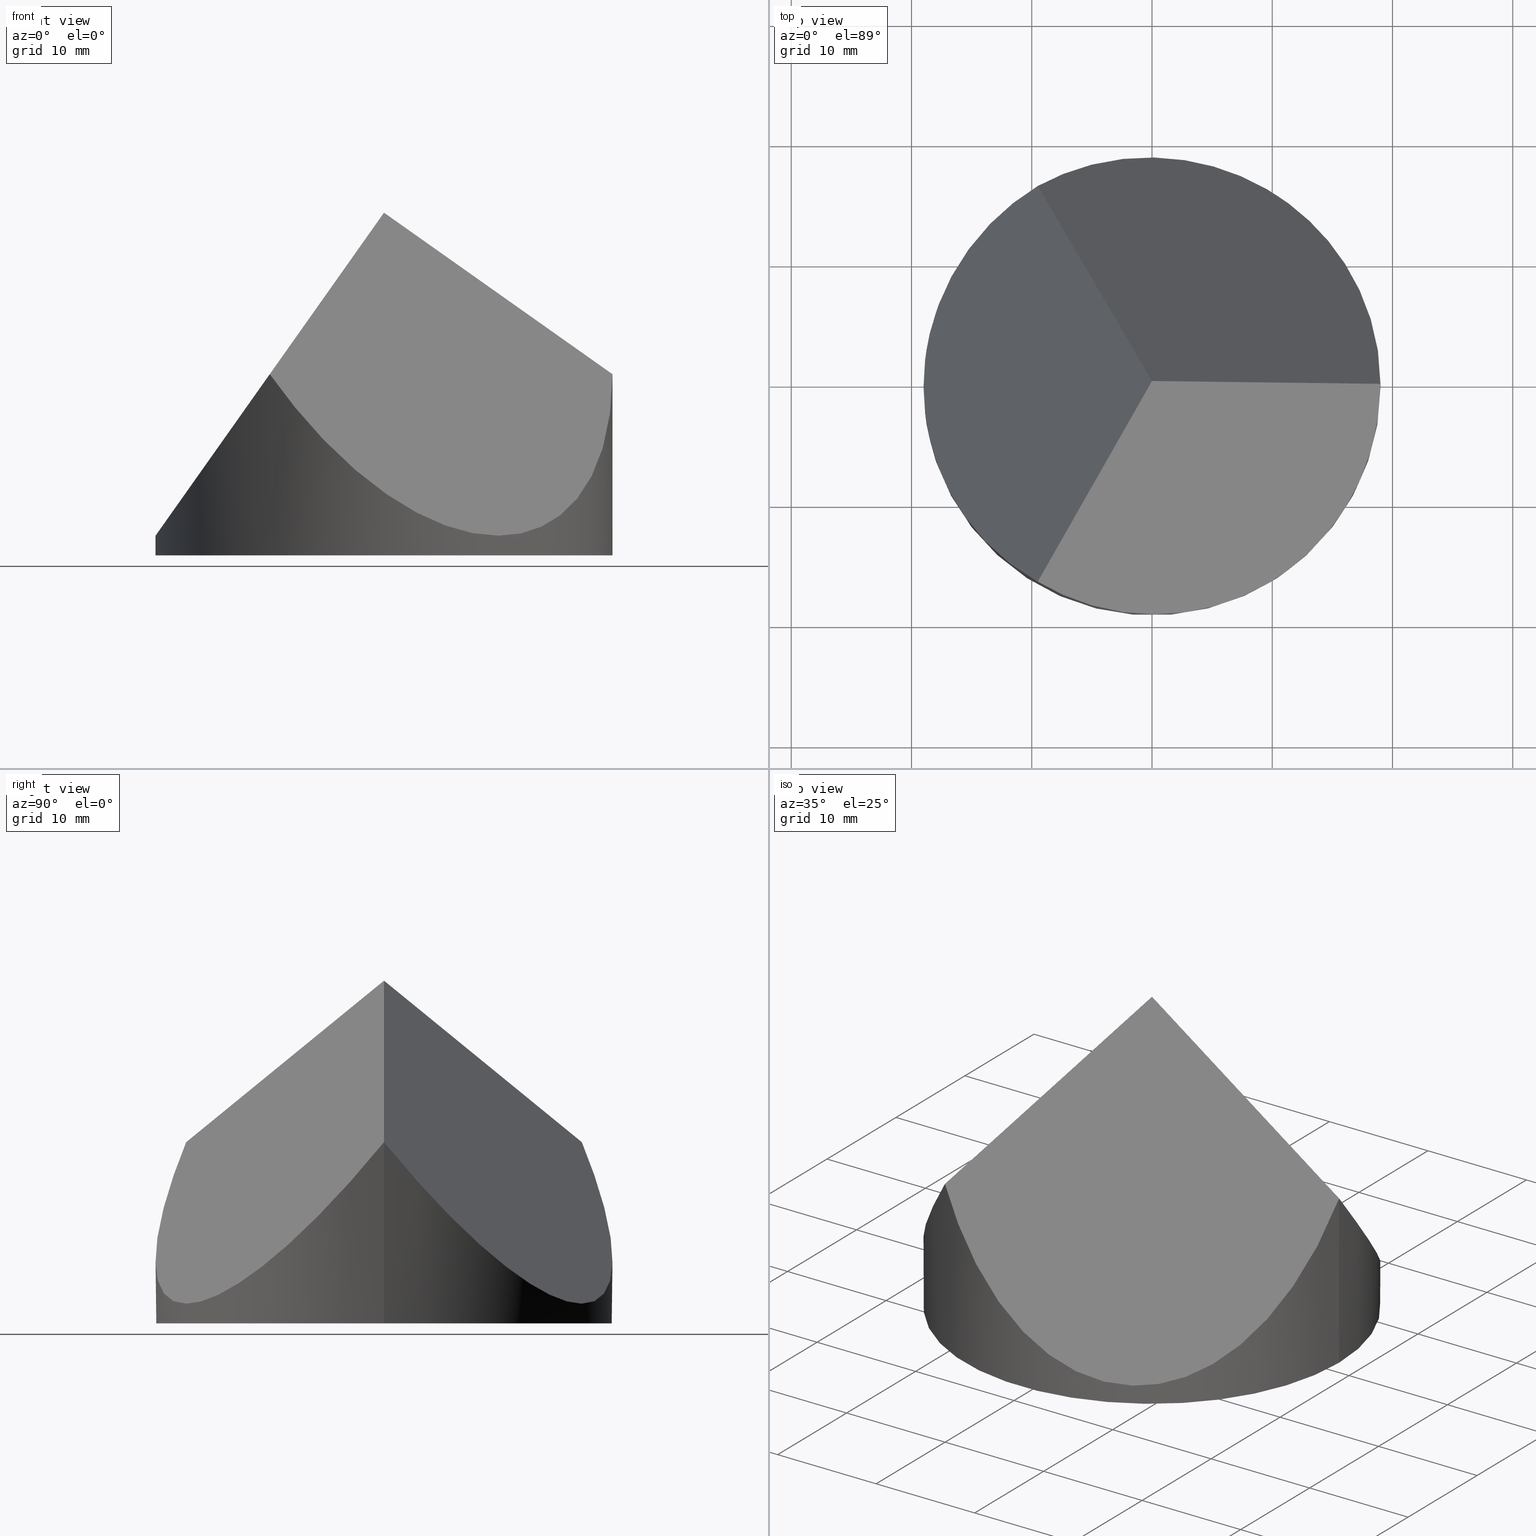
[diagram: canonical four-view strip — front | top / right | iso, engineering-drawing reading convention]
A machine part, canonical four-view strip (front | top / right | iso — engineering-drawing reading convention). The complete STEP part file that produces these views, byte-faithful:
ISO-10303-21;
HEADER;
FILE_DESCRIPTION (( 'STEP AP203' ),
    '1' );
FILE_NAME ('371505.STEP',
    '2019-07-25T01:35:21',
    ( '' ),
    ( '' ),
    'SwSTEP 2.0',
    'SolidWorks 2016',
    '' );
FILE_SCHEMA (( 'CONFIG_CONTROL_DESIGN' ));
ENDSEC;

DATA;
#1 = DIRECTION ( 'NONE',  ( 0.0000000000000000000, 0.6325343505460016000, 0.7745323075116672400 ) ) ;
#2 = DIRECTION ( 'NONE',  ( 0.0000000000000000000, 0.0000000000000000000, 1.000000000000000000 ) ) ;
#3 = CALENDAR_DATE ( 2019, 25, 7 ) ;
#4 = SECURITY_CLASSIFICATION_LEVEL ( 'unclassified' ) ;
#5 = ORIENTED_EDGE ( 'NONE', *, *, #251, .T. ) ;
#6 = APPROVAL_PERSON_ORGANIZATION ( #37, #94, #277 ) ;
#7 = CC_DESIGN_DATE_AND_TIME_ASSIGNMENT ( #107, #239, ( #309 ) ) ;
#8 = PERSON ( 'δָ��', 'δָ��', 'δָ��', ('δָ��'), ('δָ��'), ('δָ��') ) ;
#9 = DIRECTION ( 'NONE',  ( -1.000000000000000000, 0.0000000000000000000, 0.0000000000000000000 ) ) ;
#10 = EDGE_LOOP ( 'NONE', ( #231, #297 ) ) ;
#11 = EDGE_CURVE ( 'NONE', #134, #50, #34, .T. ) ;
#12 = CARTESIAN_POINT ( 'NONE',  ( 21.36491780749591400, 0.0000000000000000000, 13.39585933566258700 ) ) ;
#13 = PRODUCT_DEFINITION_SHAPE ( 'NONE', 'NONE',  #309 ) ;
#14 = CC_DESIGN_APPROVAL ( #30, ( #158 ) ) ;
#15 = CARTESIAN_POINT ( 'NONE',  ( 19.00000000000001400, 5.354801039138735000E-032, 15.06776144854982000 ) ) ;
#16 = APPROVAL_PERSON_ORGANIZATION ( #160, #30, #260 ) ;
#17 = APPROVAL_PERSON_ORGANIZATION ( #149, #206, #128 ) ;
#18 = LOCAL_TIME ( 9, 35, 21.00000000000000000, #165 ) ;
#19 = AXIS2_PLACEMENT_3D ( 'NONE', #147, #170, #1 ) ;
#20 = LOCAL_TIME ( 9, 35, 21.00000000000000000, #98 ) ;
#21 = ORIENTED_EDGE ( 'NONE', *, *, #256, .T. ) ;
#22 = DIRECTION ( 'NONE',  ( 0.0000000000000000000, 0.0000000000000000000, 1.000000000000000000 ) ) ;
#23 = DESIGN_CONTEXT ( 'detailed design', #52, 'design' ) ;
#24 = CARTESIAN_POINT ( 'NONE',  ( -19.00000000000000400, -6.954482671904324700, 1.635522897099544300 ) ) ;
#25 = APPROVAL ( #151, 'δָ��' ) ;
#26 = APPLICATION_CONTEXT ( 'configuration controlled 3d designs of mechanical parts and assemblies' ) ;
#27 = VECTOR ( 'NONE', #130, 1000.000000000000000 ) ;
#28 = PERSON_AND_ORGANIZATION ( #8, #115 ) ;
#29 = PRODUCT_DEFINITION_SHAPE ( 'NONE', 'NONE',  #295 ) ;
#30 = APPROVAL ( #303, 'δָ��' ) ;
#31 = CALENDAR_DATE ( 2019, 25, 7 ) ;
#32 = PERSON_AND_ORGANIZATION_ROLE ( 'creator' ) ;
#33 = APPROVAL_STATUS ( 'not_yet_approved' ) ;
#34 = LINE ( 'NONE', #189, #110 ) ;
#35 = CARTESIAN_POINT ( 'NONE',  ( -19.00000000000000000, 0.0000000000000000000, 0.0000000000000000000 ) ) ;
#36 = LOCAL_TIME ( 9, 35, 21.00000000000000000, #99 ) ;
#37 = PERSON_AND_ORGANIZATION ( #8, #115 ) ;
#38 = DIRECTION ( 'NONE',  ( 1.000000000000000000, 0.0000000000000000000, -0.0000000000000000000 ) ) ;
#39 = CC_DESIGN_PERSON_AND_ORGANIZATION_ASSIGNMENT ( #144, #279, ( #226 ) ) ;
#40 = ORIENTED_EDGE ( 'NONE', *, *, #202, .T. ) ;
#41 = COORDINATED_UNIVERSAL_TIME_OFFSET ( 8, 0, .AHEAD. ) ;
#42 =( NAMED_UNIT ( * ) PLANE_ANGLE_UNIT ( ) SI_UNIT ( $, .RADIAN. ) );
#43 = AXIS2_PLACEMENT_3D ( 'NONE', #250, #2, #272 ) ;
#44 = DIRECTION ( 'NONE',  ( 0.4082200218682777700, 0.7070578185427395200, 0.5774302165486711000 ) ) ;
#45 = LINE ( 'NONE', #161, #157 ) ;
#46 = CARTESIAN_POINT ( 'NONE',  ( -9.500000000000016000, -16.45448267190433000, 15.06776144854975300 ) ) ;
#47 = APPLICATION_CONTEXT ( 'configuration controlled 3d designs of mechanical parts and assemblies' ) ;
#48 = PERSON_AND_ORGANIZATION_ROLE ( 'creator' ) ;
#49 = AXIS2_PLACEMENT_3D ( 'NONE', #227, #22, #252 ) ;
#50 = VERTEX_POINT ( 'NONE', #219 ) ;
#51 = APPROVAL_PERSON_ORGANIZATION ( #265, #25, #299 ) ;
#52 = APPLICATION_CONTEXT ( 'configuration controlled 3d designs of mechanical parts and assemblies' ) ;
#53 =( BOUNDED_CURVE ( )  B_SPLINE_CURVE ( 3, ( #56, #213, #285, #62 ),
 .UNSPECIFIED., .F., .F. ) 
 B_SPLINE_CURVE_WITH_KNOTS ( ( 4, 4 ),
 ( 5.235987755982986200, 7.330382858376182800 ),
 .UNSPECIFIED. ) 
 CURVE ( )  GEOMETRIC_REPRESENTATION_ITEM ( )  RATIONAL_B_SPLINE_CURVE ( ( 1.000000000000000000, 0.6666666666666663000, 0.6666666666666663000, 1.000000000000000000 ) ) 
 REPRESENTATION_ITEM ( '' )  );
#54 = APPROVAL_ROLE ( '' ) ;
#55 = PRODUCT ( '371505', '371505', '', ( #300 ) ) ;
#56 = CARTESIAN_POINT ( 'NONE',  ( 19.00000000000001400, 5.354801039138735000E-032, 15.06776144854982000 ) ) ;
#57 = FACE_OUTER_BOUND ( 'NONE', #287, .T. ) ;
#58 = ORIENTED_EDGE ( 'NONE', *, *, #113, .T. ) ;
#59 = APPROVAL_DATE_TIME ( #138, #246 ) ;
#60 = DIRECTION ( 'NONE',  ( -0.0000000000000000000, -0.0000000000000000000, -1.000000000000000000 ) ) ;
#61 = CC_DESIGN_PERSON_AND_ORGANIZATION_ASSIGNMENT ( #90, #154, ( #158 ) ) ;
#62 = CARTESIAN_POINT ( 'NONE',  ( -9.500000000000021300, 16.45448267190432300, 15.06776144854974600 ) ) ;
#63 = CARTESIAN_POINT ( 'NONE',  ( -9.500000000000021300, 16.45448267190432300, 15.06776144854974600 ) ) ;
#64 = FACE_OUTER_BOUND ( 'NONE', #247, .T. ) ;
#65 = FACE_OUTER_BOUND ( 'NONE', #216, .T. ) ;
#66 = CIRCLE ( 'NONE', #267, 19.00000000000000000 ) ;
#67 = PERSON_AND_ORGANIZATION ( #8, #115 ) ;
#68 = SECURITY_CLASSIFICATION ( '', '', #283 ) ;
#69 = DIRECTION ( 'NONE',  ( 0.8164400437365592100, 0.0000000000000000000, -0.5774302165486712200 ) ) ;
#70 = DATE_AND_TIME ( #228, #136 ) ;
#71 = LOCAL_TIME ( 9, 35, 21.00000000000000000, #41 ) ;
#72 = CARTESIAN_POINT ( 'NONE',  ( -7.073520084914154200, -12.25169617543021200, 18.49860956010091000 ) ) ;
#73 = AXIS2_PLACEMENT_3D ( 'NONE', #74, #69, #146 ) ;
#74 = CARTESIAN_POINT ( 'NONE',  ( 0.0000000000000000000, -24.50000000000000000, 28.49999999999999600 ) ) ;
#75 = CARTESIAN_POINT ( 'NONE',  ( -9.500000000000021300, 16.45448267190432300, 15.06776144854974600 ) ) ;
#76 = CARTESIAN_POINT ( 'NONE',  ( -15.52275866404783900, -12.97724133595215600, 6.552063436623012800 ) ) ;
#77 = DATE_TIME_ROLE ( 'creation_date' ) ;
#78 = DATE_TIME_ROLE ( 'classification_date' ) ;
#79 =( BOUNDED_CURVE ( )  B_SPLINE_CURVE ( 3, ( #199, #294, #100, #169 ),
 .UNSPECIFIED., .F., .F. ) 
 B_SPLINE_CURVE_WITH_KNOTS ( ( 4, 4 ),
 ( 5.235987755982986200, 7.330382858376182800 ),
 .UNSPECIFIED. ) 
 CURVE ( )  GEOMETRIC_REPRESENTATION_ITEM ( )  RATIONAL_B_SPLINE_CURVE ( ( 1.000000000000000000, 0.6666666666666663000, 0.6666666666666663000, 1.000000000000000000 ) ) 
 REPRESENTATION_ITEM ( '' )  );
#80 = CC_DESIGN_PERSON_AND_ORGANIZATION_ASSIGNMENT ( #148, #105, ( #135 ) ) ;
#81 = COORDINATED_UNIVERSAL_TIME_OFFSET ( 8, 0, .AHEAD. ) ;
#82 = CALENDAR_DATE ( 2019, 25, 7 ) ;
#83 = APPLICATION_PROTOCOL_DEFINITION ( 'international standard', 'config_control_design', 1994, #47 ) ;
#84 = ORIENTED_EDGE ( 'NONE', *, *, #282, .T. ) ;
#85 = ORIENTED_EDGE ( 'NONE', *, *, #109, .T. ) ;
#86 = COORDINATED_UNIVERSAL_TIME_OFFSET ( 8, 0, .AHEAD. ) ;
#87 = DIRECTION ( 'NONE',  ( 0.0000000000000000000, 0.0000000000000000000, 1.000000000000000000 ) ) ;
#88 = EDGE_CURVE ( 'NONE', #198, #191, #45, .T. ) ;
#89 = CARTESIAN_POINT ( 'NONE',  ( -19.00000000000000000, 0.0000000000000000000, 1.635522897099547900 ) ) ;
#90 = PERSON_AND_ORGANIZATION ( #8, #115 ) ;
#91 = ORIENTED_EDGE ( 'NONE', *, *, #251, .F. ) ;
#92 = CARTESIAN_POINT ( 'NONE',  ( 0.0000000000000000000, 0.0000000000000000000, 28.50000000000000000 ) ) ;
#93 = LOCAL_TIME ( 9, 35, 21.00000000000000000, #234 ) ;
#94 = APPROVAL ( #255, 'δָ��' ) ;
#95 = VERTEX_POINT ( 'NONE', #89 ) ;
#96 = LOCAL_TIME ( 9, 35, 21.00000000000000000, #86 ) ;
#97 = EDGE_CURVE ( 'NONE', #95, #123, #269, .T. ) ;
#98 = COORDINATED_UNIVERSAL_TIME_OFFSET ( 8, 0, .AHEAD. ) ;
#99 = COORDINATED_UNIVERSAL_TIME_OFFSET ( 8, 0, .AHEAD. ) ;
#100 = CARTESIAN_POINT ( 'NONE',  ( 4.749999999999993800, -24.68172400785652300, -5.080596378625580600 ) ) ;
#101 = CC_DESIGN_PERSON_AND_ORGANIZATION_ASSIGNMENT ( #280, #108, ( #158 ) ) ;
#102 = ORIENTED_EDGE ( 'NONE', *, *, #256, .F. ) ;
#103 = ORIENTED_EDGE ( 'NONE', *, *, #97, .T. ) ;
#104 = SHAPE_DEFINITION_REPRESENTATION ( #13, #159 ) ;
#105 = PERSON_AND_ORGANIZATION_ROLE ( 'design_owner' ) ;
#106 = AXIS2_PLACEMENT_3D ( 'NONE', #196, #172, #200 ) ;
#107 = DATE_AND_TIME ( #229, #96 ) ;
#108 = PERSON_AND_ORGANIZATION_ROLE ( 'design_supplier' ) ;
#109 = EDGE_CURVE ( 'NONE', #50, #123, #66, .T. ) ;
#110 = VECTOR ( 'NONE', #60, 1000.000000000000000 ) ;
#111 = CLOSED_SHELL ( 'NONE', ( #177, #205, #301, #181, #278, #238 ) ) ;
#112 = DIRECTION ( 'NONE',  ( 1.000000000000000000, 0.0000000000000000000, 0.0000000000000000000 ) ) ;
#113 = EDGE_CURVE ( 'NONE', #134, #191, #253, .T. ) ;
#114 = AXIS2_PLACEMENT_3D ( 'NONE', #92, #156, #9 ) ;
#115 = ORGANIZATION ( 'δָ��', 'δָ��', '' ) ;
#116 = CARTESIAN_POINT ( 'NONE',  ( -19.00000000000000000, 0.0000000000000000000, 1.635522897099547900 ) ) ;
#117 = PLANE ( 'NONE',  #73 ) ;
#118 = LINE ( 'NONE', #72, #175 ) ;
#119 = CC_DESIGN_APPROVAL ( #206, ( #309 ) ) ;
#120 =( LENGTH_UNIT ( ) NAMED_UNIT ( * ) SI_UNIT ( .MILLI., .METRE. ) );
#121 = PERSON_AND_ORGANIZATION_ROLE ( 'design_supplier' ) ;
#122 = FACE_OUTER_BOUND ( 'NONE', #10, .T. ) ;
#123 = VERTEX_POINT ( 'NONE', #35 ) ;
#124 = APPLICATION_PROTOCOL_DEFINITION ( 'international standard', 'config_control_design', 1994, #26 ) ;
#125 = PERSON_AND_ORGANIZATION_ROLE ( 'classification_officer' ) ;
#126 = CC_DESIGN_PERSON_AND_ORGANIZATION_ASSIGNMENT ( #225, #183, ( #55 ) ) ;
#127 = CIRCLE ( 'NONE', #106, 19.00000000000000000 ) ;
#128 = APPROVAL_ROLE ( '' ) ;
#129 = ORIENTED_EDGE ( 'NONE', *, *, #11, .T. ) ;
#130 = DIRECTION ( 'NONE',  ( -0.0000000000000000000, -0.0000000000000000000, -1.000000000000000000 ) ) ;
#131 = UNCERTAINTY_MEASURE_WITH_UNIT (LENGTH_MEASURE( 1.000000000000000100E-005 ), #120, 'distance_accuracy_value', 'NONE');
#132 = EDGE_CURVE ( 'NONE', #134, #198, #53, .T. ) ;
#133 = PLANE ( 'NONE',  #312 ) ;
#134 = VERTEX_POINT ( 'NONE', #15 ) ;
#135 = PRODUCT ( '371505', '371505', '', ( #176 ) ) ;
#136 = LOCAL_TIME ( 9, 35, 21.00000000000000000, #81 ) ;
#137 = CYLINDRICAL_SURFACE ( 'NONE', #114, 19.00000000000000000 ) ;
#138 = DATE_AND_TIME ( #270, #241 ) ;
#139 = CC_DESIGN_PERSON_AND_ORGANIZATION_ASSIGNMENT ( #208, #48, ( #295 ) ) ;
#140 = DATE_AND_TIME ( #82, #187 ) ;
#141 = DIRECTION ( 'NONE',  ( 0.0000000000000000000, -0.6325343505460012700, 0.7745323075116675700 ) ) ;
#142 = CC_DESIGN_PERSON_AND_ORGANIZATION_ASSIGNMENT ( #67, #32, ( #309 ) ) ;
#143 = DATE_AND_TIME ( #31, #20 ) ;
#144 = PERSON_AND_ORGANIZATION ( #8, #115 ) ;
#145 = DIRECTION ( 'NONE',  ( -1.000000000000000000, 0.0000000000000000000, 0.0000000000000000000 ) ) ;
#146 = DIRECTION ( 'NONE',  ( -0.5774302165486712200, 0.0000000000000000000, -0.8164400437365592100 ) ) ;
#147 = CARTESIAN_POINT ( 'NONE',  ( 24.68172400785654500, 14.24999999999995000, 28.50000000000000000 ) ) ;
#148 = PERSON_AND_ORGANIZATION ( #8, #115 ) ;
#149 = PERSON_AND_ORGANIZATION ( #8, #115 ) ;
#150 = APPROVAL_STATUS ( 'not_yet_approved' ) ;
#151 = APPROVAL_STATUS ( 'not_yet_approved' ) ;
#152 = APPROVAL_STATUS ( 'not_yet_approved' ) ;
#153 = DATE_AND_TIME ( #222, #224 ) ;
#154 = PERSON_AND_ORGANIZATION_ROLE ( 'creator' ) ;
#155 =( GEOMETRIC_REPRESENTATION_CONTEXT ( 3 ) GLOBAL_UNCERTAINTY_ASSIGNED_CONTEXT ( ( #131 ) ) GLOBAL_UNIT_ASSIGNED_CONTEXT ( ( #120, #42, #296 ) ) REPRESENTATION_CONTEXT ( 'NONE', 'WORKASPACE' ) );
#156 = DIRECTION ( 'NONE',  ( -0.0000000000000000000, -0.0000000000000000000, -1.000000000000000000 ) ) ;
#157 = VECTOR ( 'NONE', #306, 1000.000000000000100 ) ;
#158 = PRODUCT_DEFINITION_FORMATION_WITH_SPECIFIED_SOURCE ( '�κ�', '', #135, .NOT_KNOWN. ) ;
#159 = ADVANCED_BREP_SHAPE_REPRESENTATION ( '371505', ( #210, #49 ), #155 ) ;
#160 = PERSON_AND_ORGANIZATION ( #8, #115 ) ;
#161 = CARTESIAN_POINT ( 'NONE',  ( 7.073520084914156800, -12.25169617543019200, 38.50139043989909000 ) ) ;
#162 = APPROVAL_PERSON_ORGANIZATION ( #28, #246, #179 ) ;
#163 = COORDINATED_UNIVERSAL_TIME_OFFSET ( 8, 0, .AHEAD. ) ;
#164 = APPROVAL_PERSON_ORGANIZATION ( #185, #244, #54 ) ;
#165 = COORDINATED_UNIVERSAL_TIME_OFFSET ( 8, 0, .AHEAD. ) ;
#166 = CC_DESIGN_PERSON_AND_ORGANIZATION_ASSIGNMENT ( #263, #201, ( #68 ) ) ;
#167 = ORIENTED_EDGE ( 'NONE', *, *, #202, .F. ) ;
#168 = APPROVAL_DATE_TIME ( #140, #206 ) ;
#169 = CARTESIAN_POINT ( 'NONE',  ( -9.500000000000016000, -16.45448267190433000, 15.06776144854975300 ) ) ;
#170 = DIRECTION ( 'NONE',  ( -0.4082200218682779400, 0.7070578185427391900, -0.5774302165486714400 ) ) ;
#171 = CARTESIAN_POINT ( 'NONE',  ( -19.00000000000000400, 6.954482671904324700, 1.635522897099544300 ) ) ;
#172 = DIRECTION ( 'NONE',  ( 0.0000000000000000000, 0.0000000000000000000, 1.000000000000000000 ) ) ;
#173 = PRODUCT_RELATED_PRODUCT_CATEGORY ( 'detail', '', ( #55 ) ) ;
#174 = PLANE ( 'NONE',  #230 ) ;
#175 = VECTOR ( 'NONE', #271, 1000.000000000000200 ) ;
#176 = MECHANICAL_CONTEXT ( 'NONE', #47, 'mechanical' ) ;
#177 = ADVANCED_FACE ( 'NONE', ( #209 ), #137, .T. ) ;
#178 = ORIENTED_EDGE ( 'NONE', *, *, #97, .F. ) ;
#179 = APPROVAL_ROLE ( '' ) ;
#180 = DATE_AND_TIME ( #249, #18 ) ;
#181 = ADVANCED_FACE ( 'NONE', ( #122 ), #133, .F. ) ;
#182 = CC_DESIGN_PERSON_AND_ORGANIZATION_ASSIGNMENT ( #211, #125, ( #235 ) ) ;
#183 = PERSON_AND_ORGANIZATION_ROLE ( 'design_owner' ) ;
#184 =( BOUNDED_CURVE ( )  B_SPLINE_CURVE ( 3, ( #46, #76, #24, #116 ),
 .UNSPECIFIED., .F., .T. ) 
 B_SPLINE_CURVE_WITH_KNOTS ( ( 4, 4 ),
 ( 5.235987755982989700, 6.283185307179586200 ),
 .UNSPECIFIED. ) 
 CURVE ( )  GEOMETRIC_REPRESENTATION_ITEM ( )  RATIONAL_B_SPLINE_CURVE ( ( 1.000000000000000000, 0.9106836025229592100, 0.9106836025229592100, 1.000000000000000000 ) ) 
 REPRESENTATION_ITEM ( '' )  );
#185 = PERSON_AND_ORGANIZATION ( #8, #115 ) ;
#186 = DIRECTION ( 'NONE',  ( 0.0000000000000000000, 0.0000000000000000000, 1.000000000000000000 ) ) ;
#187 = LOCAL_TIME ( 9, 35, 21.00000000000000000, #204 ) ;
#188 = PRODUCT_RELATED_PRODUCT_CATEGORY ( 'detail', '', ( #135 ) ) ;
#189 = CARTESIAN_POINT ( 'NONE',  ( 19.00000000000000000, 2.326828918379970600E-015, 28.50000000000000000 ) ) ;
#190 = CARTESIAN_POINT ( 'NONE',  ( -8.673617379884035500E-015, -3.469446951953613800E-015, 28.49999999999999600 ) ) ;
#191 = VERTEX_POINT ( 'NONE', #190 ) ;
#192 = CC_DESIGN_DATE_AND_TIME_ASSIGNMENT ( #288, #78, ( #68 ) ) ;
#193 =( BOUNDED_CURVE ( )  B_SPLINE_CURVE ( 3, ( #232, #171, #276, #63 ),
 .UNSPECIFIED., .F., .F. ) 
 B_SPLINE_CURVE_WITH_KNOTS ( ( 4, 4 ),
 ( 0.0000000000000000000, 1.047197551196596500 ),
 .UNSPECIFIED. ) 
 CURVE ( )  GEOMETRIC_REPRESENTATION_ITEM ( )  RATIONAL_B_SPLINE_CURVE ( ( 1.000000000000000000, 0.9106836025229592100, 0.9106836025229592100, 1.000000000000000000 ) ) 
 REPRESENTATION_ITEM ( '' )  );
#194 = CC_DESIGN_SECURITY_CLASSIFICATION ( #68, ( #158 ) ) ;
#195 = ORIENTED_EDGE ( 'NONE', *, *, #242, .T. ) ;
#196 = CARTESIAN_POINT ( 'NONE',  ( 0.0000000000000000000, 0.0000000000000000000, 0.0000000000000000000 ) ) ;
#197 = CC_DESIGN_SECURITY_CLASSIFICATION ( #235, ( #226 ) ) ;
#198 = VERTEX_POINT ( 'NONE', #75 ) ;
#199 = CARTESIAN_POINT ( 'NONE',  ( 19.00000000000001400, 5.354801039138735000E-032, 15.06776144854982000 ) ) ;
#200 = DIRECTION ( 'NONE',  ( 1.000000000000000000, 0.0000000000000000000, 0.0000000000000000000 ) ) ;
#201 = PERSON_AND_ORGANIZATION_ROLE ( 'classification_officer' ) ;
#202 = EDGE_CURVE ( 'NONE', #95, #198, #193, .T. ) ;
#203 = ORIENTED_EDGE ( 'NONE', *, *, #11, .F. ) ;
#204 = COORDINATED_UNIVERSAL_TIME_OFFSET ( 8, 0, .AHEAD. ) ;
#205 = ADVANCED_FACE ( 'NONE', ( #214 ), #245, .T. ) ;
#206 = APPROVAL ( #152, 'δָ��' ) ;
#207 = APPLICATION_PROTOCOL_DEFINITION ( 'international standard', 'config_control_design', 1994, #52 ) ;
#208 = PERSON_AND_ORGANIZATION ( #8, #115 ) ;
#209 = FACE_OUTER_BOUND ( 'NONE', #237, .T. ) ;
#210 = MANIFOLD_SOLID_BREP ( '�г�-����3', #111 ) ;
#211 = PERSON_AND_ORGANIZATION ( #8, #115 ) ;
#212 = CC_DESIGN_APPROVAL ( #94, ( #68 ) ) ;
#213 = CARTESIAN_POINT ( 'NONE',  ( 19.00000000000000400, 16.45448267190435800, -5.080596378625568100 ) ) ;
#214 = FACE_OUTER_BOUND ( 'NONE', #274, .T. ) ;
#215 = CC_DESIGN_PERSON_AND_ORGANIZATION_ASSIGNMENT ( #292, #121, ( #226 ) ) ;
#216 = EDGE_LOOP ( 'NONE', ( #102, #5, #291, #167 ) ) ;
#217 = CARTESIAN_POINT ( 'NONE',  ( 0.0000000000000000000, 0.0000000000000000000, 0.0000000000000000000 ) ) ;
#218 = APPROVAL_DATE_TIME ( #180, #25 ) ;
#219 = CARTESIAN_POINT ( 'NONE',  ( 19.00000000000000000, 2.326828918379970600E-015, 0.0000000000000000000 ) ) ;
#220 = DIRECTION ( 'NONE',  ( -0.8165531063768113300, 1.848892764340220800E-032, 0.5772703218305784700 ) ) ;
#221 = CARTESIAN_POINT ( 'NONE',  ( -19.00000000000000000, 0.0000000000000000000, 28.50000000000000000 ) ) ;
#222 = CALENDAR_DATE ( 2019, 25, 7 ) ;
#223 = CC_DESIGN_APPROVAL ( #244, ( #295 ) ) ;
#224 = LOCAL_TIME ( 9, 35, 21.00000000000000000, #163 ) ;
#225 = PERSON_AND_ORGANIZATION ( #8, #115 ) ;
#226 = PRODUCT_DEFINITION_FORMATION_WITH_SPECIFIED_SOURCE ( '�κ�', '', #55, .NOT_KNOWN. ) ;
#227 = CARTESIAN_POINT ( 'NONE',  ( 0.0000000000000000000, 0.0000000000000000000, 0.0000000000000000000 ) ) ;
#228 = CALENDAR_DATE ( 2019, 25, 7 ) ;
#229 = CALENDAR_DATE ( 2019, 25, 7 ) ;
#230 = AXIS2_PLACEMENT_3D ( 'NONE', #233, #44, #141 ) ;
#231 = ORIENTED_EDGE ( 'NONE', *, *, #282, .F. ) ;
#232 = CARTESIAN_POINT ( 'NONE',  ( -19.00000000000000000, 0.0000000000000000000, 1.635522897099547900 ) ) ;
#233 = CARTESIAN_POINT ( 'NONE',  ( 32.04293994002429000, -18.49999999999991800, 28.50000000000000000 ) ) ;
#234 = COORDINATED_UNIVERSAL_TIME_OFFSET ( 8, 0, .AHEAD. ) ;
#235 = SECURITY_CLASSIFICATION ( '', '', #4 ) ;
#236 = APPLICATION_CONTEXT ( 'configuration controlled 3d designs of mechanical parts and assemblies' ) ;
#237 = EDGE_LOOP ( 'NONE', ( #310, #129, #85, #178, #40 ) ) ;
#238 = ADVANCED_FACE ( 'NONE', ( #64 ), #273, .F. ) ;
#239 = DATE_TIME_ROLE ( 'creation_date' ) ;
#240 = AXIS2_PLACEMENT_3D ( 'NONE', #298, #254, #145 ) ;
#241 = LOCAL_TIME ( 9, 35, 21.00000000000000000, #302 ) ;
#242 = EDGE_CURVE ( 'NONE', #134, #264, #79, .T. ) ;
#243 = CARTESIAN_POINT ( 'NONE',  ( 0.0000000000000000000, 0.0000000000000000000, 0.0000000000000000000 ) ) ;
#244 = APPROVAL ( #33, 'δָ��' ) ;
#245 = CYLINDRICAL_SURFACE ( 'NONE', #240, 19.00000000000000000 ) ;
#246 = APPROVAL ( #150, 'δָ��' ) ;
#247 = EDGE_LOOP ( 'NONE', ( #58, #91, #248 ) ) ;
#248 = ORIENTED_EDGE ( 'NONE', *, *, #242, .F. ) ;
#249 = CALENDAR_DATE ( 2019, 25, 7 ) ;
#250 = CARTESIAN_POINT ( 'NONE',  ( 0.0000000000000000000, 0.0000000000000000000, 0.0000000000000000000 ) ) ;
#251 = EDGE_CURVE ( 'NONE', #264, #191, #118, .T. ) ;
#252 = DIRECTION ( 'NONE',  ( 1.000000000000000000, 0.0000000000000000000, 0.0000000000000000000 ) ) ;
#253 = LINE ( 'NONE', #12, #257 ) ;
#254 = DIRECTION ( 'NONE',  ( -0.0000000000000000000, -0.0000000000000000000, -1.000000000000000000 ) ) ;
#255 = APPROVAL_STATUS ( 'not_yet_approved' ) ;
#256 = EDGE_CURVE ( 'NONE', #264, #95, #184, .T. ) ;
#257 = VECTOR ( 'NONE', #220, 1000.000000000000200 ) ;
#258 = DATE_TIME_ROLE ( 'classification_date' ) ;
#259 = CC_DESIGN_APPROVAL ( #246, ( #235 ) ) ;
#260 = APPROVAL_ROLE ( '' ) ;
#261 = ORIENTED_EDGE ( 'NONE', *, *, #88, .T. ) ;
#262 = CC_DESIGN_DATE_AND_TIME_ASSIGNMENT ( #70, #77, ( #295 ) ) ;
#263 = PERSON_AND_ORGANIZATION ( #8, #115 ) ;
#264 = VERTEX_POINT ( 'NONE', #293 ) ;
#265 = PERSON_AND_ORGANIZATION ( #8, #115 ) ;
#266 = DESIGN_CONTEXT ( 'detailed design', #236, 'design' ) ;
#267 = AXIS2_PLACEMENT_3D ( 'NONE', #217, #186, #112 ) ;
#268 = APPROVAL_DATE_TIME ( #153, #244 ) ;
#269 = LINE ( 'NONE', #221, #27 ) ;
#270 = CALENDAR_DATE ( 2019, 25, 7 ) ;
#271 = DIRECTION ( 'NONE',  ( 0.4082765531884055000, 0.7071557336614139300, 0.5772703218305809100 ) ) ;
#272 = DIRECTION ( 'NONE',  ( 1.000000000000000000, 0.0000000000000000000, 0.0000000000000000000 ) ) ;
#273 = PLANE ( 'NONE',  #19 ) ;
#274 = EDGE_LOOP ( 'NONE', ( #203, #195, #21, #103, #84 ) ) ;
#275 = CC_DESIGN_APPROVAL ( #25, ( #226 ) ) ;
#276 = CARTESIAN_POINT ( 'NONE',  ( -15.52275866404784700, 12.97724133595215400, 6.552063436623003900 ) ) ;
#277 = APPROVAL_ROLE ( '' ) ;
#278 = ADVANCED_FACE ( 'NONE', ( #57 ), #174, .T. ) ;
#279 = PERSON_AND_ORGANIZATION_ROLE ( 'creator' ) ;
#280 = PERSON_AND_ORGANIZATION ( #8, #115 ) ;
#281 = DATE_AND_TIME ( #284, #93 ) ;
#282 = EDGE_CURVE ( 'NONE', #123, #50, #127, .T. ) ;
#283 = SECURITY_CLASSIFICATION_LEVEL ( 'unclassified' ) ;
#284 = CALENDAR_DATE ( 2019, 25, 7 ) ;
#285 = CARTESIAN_POINT ( 'NONE',  ( 4.749999999999983100, 24.68172400785652300, -5.080596378625613400 ) ) ;
#286 = APPROVAL_DATE_TIME ( #143, #30 ) ;
#287 = EDGE_LOOP ( 'NONE', ( #305, #307, #261 ) ) ;
#288 = DATE_AND_TIME ( #3, #71 ) ;
#289 = CALENDAR_DATE ( 2019, 25, 7 ) ;
#290 = CC_DESIGN_DATE_AND_TIME_ASSIGNMENT ( #311, #258, ( #235 ) ) ;
#291 = ORIENTED_EDGE ( 'NONE', *, *, #88, .F. ) ;
#292 = PERSON_AND_ORGANIZATION ( #8, #115 ) ;
#293 = CARTESIAN_POINT ( 'NONE',  ( -9.500000000000016000, -16.45448267190433000, 15.06776144854975300 ) ) ;
#294 = CARTESIAN_POINT ( 'NONE',  ( 19.00000000000001400, -16.45448267190434400, -5.080596378625531700 ) ) ;
#295 = PRODUCT_DEFINITION ( 'δ֪', '', #158, #23 ) ;
#296 =( NAMED_UNIT ( * ) SI_UNIT ( $, .STERADIAN. ) SOLID_ANGLE_UNIT ( ) );
#297 = ORIENTED_EDGE ( 'NONE', *, *, #109, .F. ) ;
#298 = CARTESIAN_POINT ( 'NONE',  ( 0.0000000000000000000, 0.0000000000000000000, 28.50000000000000000 ) ) ;
#299 = APPROVAL_ROLE ( '' ) ;
#300 = MECHANICAL_CONTEXT ( 'NONE', #26, 'mechanical' ) ;
#301 = ADVANCED_FACE ( 'NONE', ( #65 ), #117, .F. ) ;
#302 = COORDINATED_UNIVERSAL_TIME_OFFSET ( 8, 0, .AHEAD. ) ;
#303 = APPROVAL_STATUS ( 'not_yet_approved' ) ;
#304 = APPLICATION_PROTOCOL_DEFINITION ( 'international standard', 'config_control_design', 1994, #236 ) ;
#305 = ORIENTED_EDGE ( 'NONE', *, *, #113, .F. ) ;
#306 = DIRECTION ( 'NONE',  ( 0.4082765531884057200, -0.7071557336614134900, 0.5772703218305811300 ) ) ;
#307 = ORIENTED_EDGE ( 'NONE', *, *, #132, .T. ) ;
#308 = APPROVAL_DATE_TIME ( #281, #94 ) ;
#309 = PRODUCT_DEFINITION ( 'δ֪', '', #226, #266 ) ;
#310 = ORIENTED_EDGE ( 'NONE', *, *, #132, .F. ) ;
#311 = DATE_AND_TIME ( #289, #36 ) ;
#312 = AXIS2_PLACEMENT_3D ( 'NONE', #243, #87, #38 ) ;
ENDSEC;
END-ISO-10303-21;
